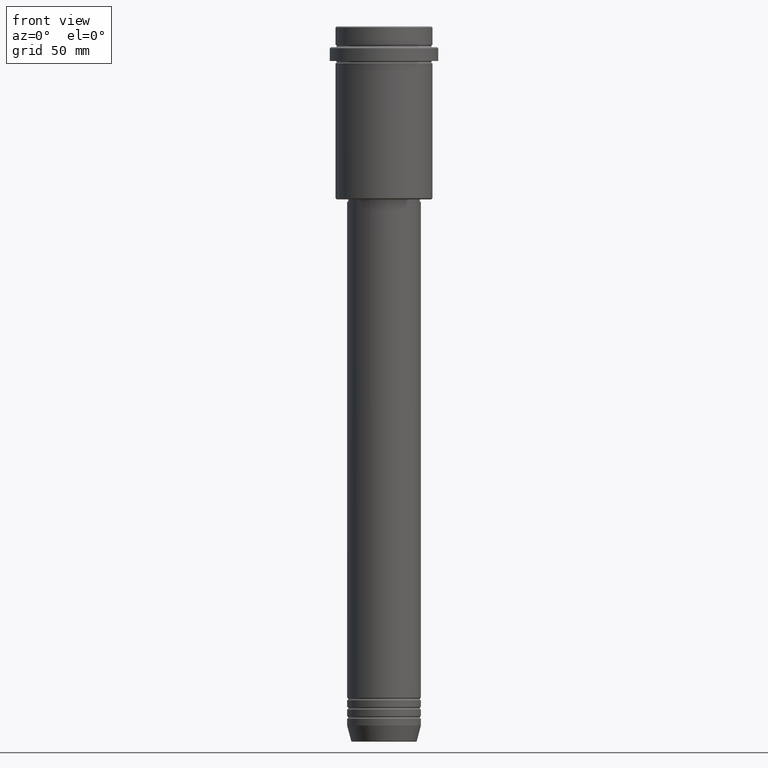
[diagram: clean part render]
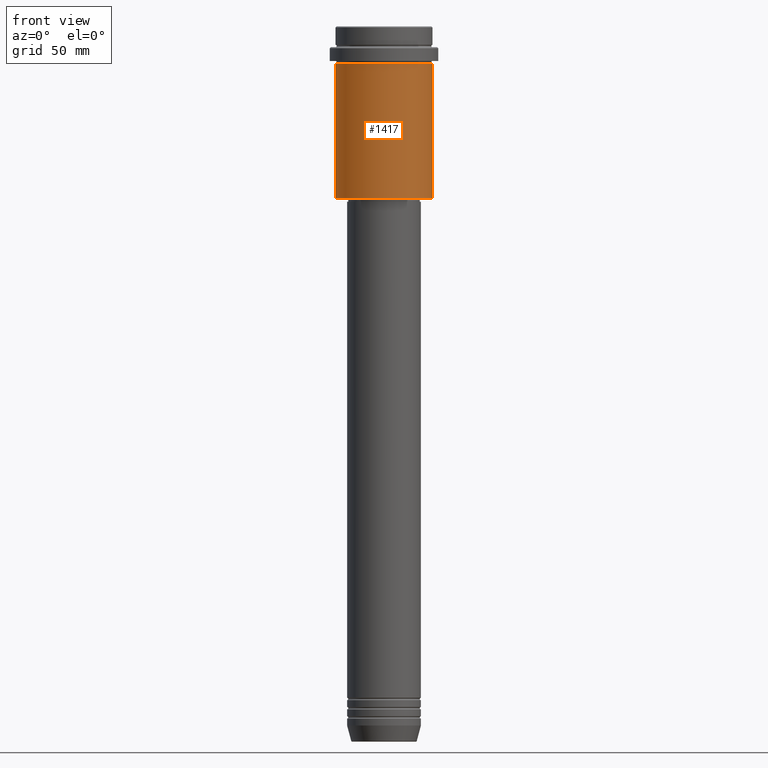
[diagram: same view with one face highlighted and labeled with its STEP entity id]
A machine part, front view. The second image highlights one B-rep face of the part: STEP entity #1417.
In plain terms, the highlighted cylindrical surface (partial cylindrical patch) has radius 21 mm, axis along (-0, -0, 1).
Its self-contained STEP definition (entity closure, byte-faithful):
#21 = FACE_OUTER_BOUND ( 'NONE', #947, .T. ) ;
#112 = DIRECTION ( 'NONE',  ( -1.000000000000000000, 0.000000000000000000, 0.000000000000000000 ) ) ;
#217 = CARTESIAN_POINT ( 'NONE',  ( -20.99999999999999645, 2.571758278209441267E-15, -16.00000000000000355 ) ) ;
#303 = LINE ( 'NONE', #953, #1057 ) ;
#320 = CIRCLE ( 'NONE', #1124, 20.99999999999999645 ) ;
#326 = CARTESIAN_POINT ( 'NONE',  ( 0.000000000000000000, 0.000000000000000000, -16.00000000000000355 ) ) ;
#334 = CARTESIAN_POINT ( 'NONE',  ( 20.99999999999999645, 0.000000000000000000, -16.00000000000000355 ) ) ;
#370 = VERTEX_POINT ( 'NONE', #334 ) ;
#373 = CARTESIAN_POINT ( 'NONE',  ( -20.99999999999999645, 2.571758278209441267E-15, -74.50000000000002842 ) ) ;
#374 = AXIS2_PLACEMENT_3D ( 'NONE', #326, #867, #752 ) ;
#406 = CARTESIAN_POINT ( 'NONE',  ( 20.99999999999999645, 0.000000000000000000, -74.50000000000002842 ) ) ;
#454 = DIRECTION ( 'NONE',  ( 1.000000000000000000, 0.000000000000000000, 0.000000000000000000 ) ) ;
#499 = VERTEX_POINT ( 'NONE', #217 ) ;
#572 = CARTESIAN_POINT ( 'NONE',  ( 0.000000000000000000, 0.000000000000000000, 0.000000000000000000 ) ) ;
#624 = AXIS2_PLACEMENT_3D ( 'NONE', #572, #792, #454 ) ;
#673 = VERTEX_POINT ( 'NONE', #406 ) ;
#689 = VECTOR ( 'NONE', #1142, 1000.000000000000000 ) ;
#718 = LINE ( 'NONE', #1376, #689 ) ;
#743 = EDGE_CURVE ( 'NONE', #673, #370, #303, .T. ) ;
#752 = DIRECTION ( 'NONE',  ( 1.000000000000000000, 0.000000000000000000, 0.000000000000000000 ) ) ;
#792 = DIRECTION ( 'NONE',  ( -0.000000000000000000, -0.000000000000000000, 1.000000000000000000 ) ) ;
#805 = ORIENTED_EDGE ( 'NONE', *, *, #1352, .T. ) ;
#867 = DIRECTION ( 'NONE',  ( -0.000000000000000000, -0.000000000000000000, 1.000000000000000000 ) ) ;
#874 = DIRECTION ( 'NONE',  ( -0.000000000000000000, -0.000000000000000000, 1.000000000000000000 ) ) ;
#947 = EDGE_LOOP ( 'NONE', ( #1250, #805, #1116, #983 ) ) ;
#953 = CARTESIAN_POINT ( 'NONE',  ( 20.99999999999999645, 0.000000000000000000, 0.000000000000000000 ) ) ;
#983 = ORIENTED_EDGE ( 'NONE', *, *, #1237, .F. ) ;
#1008 = VERTEX_POINT ( 'NONE', #373 ) ;
#1057 = VECTOR ( 'NONE', #1062, 1000.000000000000000 ) ;
#1062 = DIRECTION ( 'NONE',  ( -0.000000000000000000, -0.000000000000000000, 1.000000000000000000 ) ) ;
#1098 = CARTESIAN_POINT ( 'NONE',  ( 0.000000000000000000, 0.000000000000000000, -74.50000000000002842 ) ) ;
#1116 = ORIENTED_EDGE ( 'NONE', *, *, #743, .T. ) ;
#1124 = AXIS2_PLACEMENT_3D ( 'NONE', #1098, #874, #112 ) ;
#1129 = EDGE_CURVE ( 'NONE', #1008, #499, #718, .T. ) ;
#1142 = DIRECTION ( 'NONE',  ( -0.000000000000000000, -0.000000000000000000, 1.000000000000000000 ) ) ;
#1237 = EDGE_CURVE ( 'NONE', #499, #370, #1414, .T. ) ;
#1250 = ORIENTED_EDGE ( 'NONE', *, *, #1129, .F. ) ;
#1326 = CYLINDRICAL_SURFACE ( 'NONE', #624, 20.99999999999999645 ) ;
#1352 = EDGE_CURVE ( 'NONE', #1008, #673, #320, .T. ) ;
#1376 = CARTESIAN_POINT ( 'NONE',  ( -20.99999999999999645, 2.571758278209441267E-15, 0.000000000000000000 ) ) ;
#1414 = CIRCLE ( 'NONE', #374, 20.99999999999999645 ) ;
#1417 = ADVANCED_FACE ( 'NONE', ( #21 ), #1326, .T. ) ;